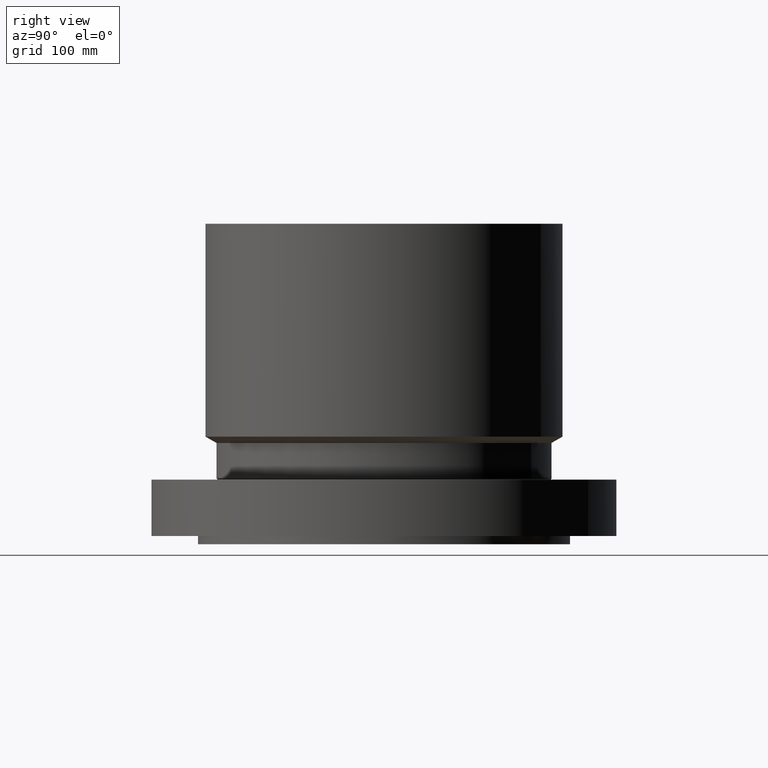
[diagram: clean part render]
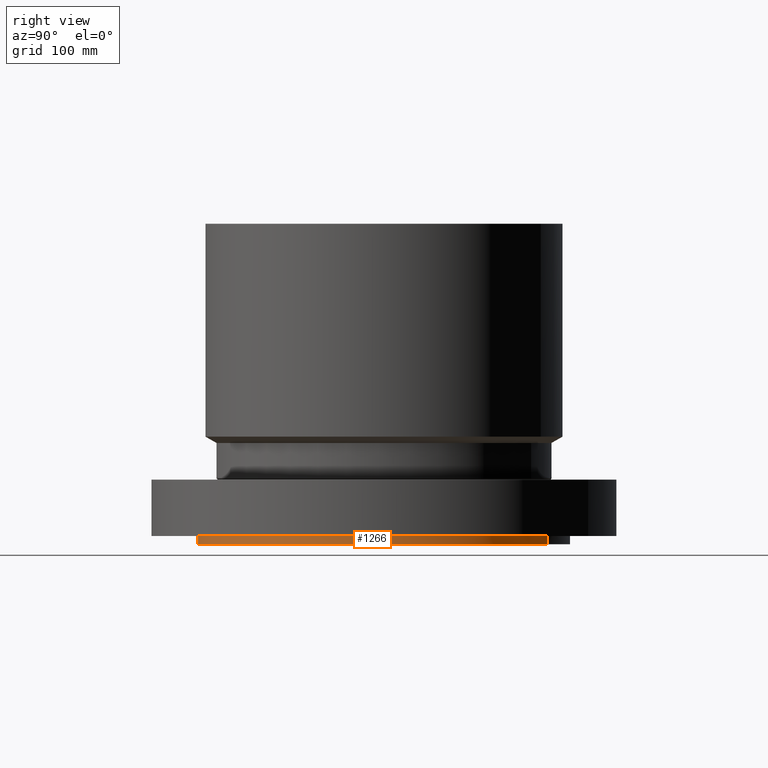
[diagram: same view with one face highlighted and labeled with its STEP entity id]
A machine part, right view. The second image highlights one B-rep face of the part: STEP entity #1266.
In plain terms, the highlighted cylindrical surface (partial cylindrical patch) has radius 177.8 mm, axis along (0, 0, -1).
Its self-contained STEP definition (entity closure, byte-faithful):
#126=AXIS2_PLACEMENT_3D('Circle Axis2P3D',#124,#125,$) ;
#133=AXIS2_PLACEMENT_3D('Circle Axis2P3D',#131,#132,$) ;
#140=AXIS2_PLACEMENT_3D('Circle Axis2P3D',#138,#139,$) ;
#147=AXIS2_PLACEMENT_3D('Circle Axis2P3D',#145,#146,$) ;
#154=AXIS2_PLACEMENT_3D('Circle Axis2P3D',#152,#153,$) ;
#224=AXIS2_PLACEMENT_3D('Circle Axis2P3D',#222,#223,$) ;
#231=AXIS2_PLACEMENT_3D('Circle Axis2P3D',#229,#230,$) ;
#238=AXIS2_PLACEMENT_3D('Circle Axis2P3D',#236,#237,$) ;
#245=AXIS2_PLACEMENT_3D('Circle Axis2P3D',#243,#244,$) ;
#1210=AXIS2_PLACEMENT_3D('Circle Axis2P3D',#1208,#1209,$) ;
#1225=AXIS2_PLACEMENT_3D('Cylinder Axis2P3D',#1222,#1223,#1224) ;
#104=CARTESIAN_POINT('Vertex',(4.94974746833,-4.94974746833,0.)) ;
#124=CARTESIAN_POINT('Axis2P3D Location',(0.,0.,0.)) ;
#128=CARTESIAN_POINT('Vertex',(6.4671567276,-2.67878402657,0.)) ;
#131=CARTESIAN_POINT('Axis2P3D Location',(0.,0.,0.)) ;
#135=CARTESIAN_POINT('Vertex',(7.00000000003,7.93175445674E-015,1.1189649382E-015)) ;
#138=CARTESIAN_POINT('Axis2P3D Location',(0.,0.,0.)) ;
#142=CARTESIAN_POINT('Vertex',(6.4671567276,2.67878402657,0.)) ;
#145=CARTESIAN_POINT('Axis2P3D Location',(0.,0.,0.)) ;
#149=CARTESIAN_POINT('Vertex',(4.94974746833,4.94974746833,0.)) ;
#152=CARTESIAN_POINT('Axis2P3D Location',(0.,0.,0.)) ;
#156=CARTESIAN_POINT('Vertex',(3.35597877024,6.14307793326,1.1189649382E-015)) ;
#219=CARTESIAN_POINT('Vertex',(-3.35597877024,-6.14307793326,1.1189649382E-015)) ;
#222=CARTESIAN_POINT('Axis2P3D Location',(0.,0.,0.)) ;
#226=CARTESIAN_POINT('Vertex',(-2.67878402657,-6.4671567276,0.)) ;
#229=CARTESIAN_POINT('Axis2P3D Location',(0.,0.,0.)) ;
#233=CARTESIAN_POINT('Vertex',(-1.02396964971E-015,-7.00000000003,0.)) ;
#236=CARTESIAN_POINT('Axis2P3D Location',(0.,0.,0.)) ;
#240=CARTESIAN_POINT('Vertex',(2.67878402657,-6.4671567276,0.)) ;
#243=CARTESIAN_POINT('Axis2P3D Location',(0.,0.,0.)) ;
#1203=CARTESIAN_POINT('Vertex',(-3.35597877024,-6.14307793326,-0.313000000001)) ;
#1205=CARTESIAN_POINT('Vertex',(3.35597877024,6.14307793326,-0.313000000001)) ;
#1208=CARTESIAN_POINT('Axis2P3D Location',(0.,0.,-0.313000000001)) ;
#1222=CARTESIAN_POINT('Axis2P3D Location',(0.,0.,5.71850000002)) ;
#1227=CARTESIAN_POINT('Line Origine',(-3.35597877024,-6.14307793326,-0.156500000001)) ;
#1232=CARTESIAN_POINT('Line Origine',(3.35597877024,6.14307793326,-0.156500000001)) ;
#125=DIRECTION('Axis2P3D Direction',(0.,0.,-0.0393700787402)) ;
#132=DIRECTION('Axis2P3D Direction',(0.,0.,-0.0393700787402)) ;
#139=DIRECTION('Axis2P3D Direction',(0.,0.,-0.0393700787402)) ;
#146=DIRECTION('Axis2P3D Direction',(0.,0.,-0.0393700787402)) ;
#153=DIRECTION('Axis2P3D Direction',(0.,0.,-0.0393700787402)) ;
#223=DIRECTION('Axis2P3D Direction',(0.,0.,-0.0393700787402)) ;
#230=DIRECTION('Axis2P3D Direction',(0.,0.,-0.0393700787402)) ;
#237=DIRECTION('Axis2P3D Direction',(0.,0.,-0.0393700787402)) ;
#244=DIRECTION('Axis2P3D Direction',(0.,0.,-0.0393700787402)) ;
#1209=DIRECTION('Axis2P3D Direction',(0.,0.,-0.0393700787402)) ;
#1223=DIRECTION('Axis2P3D Direction',(0.,0.,-0.0393700787402)) ;
#1224=DIRECTION('Axis2P3D XDirection',(0.0188750212049,0.0345504945626,0.)) ;
#1228=DIRECTION('Vector Direction',(0.,0.,-0.0393700787402)) ;
#1233=DIRECTION('Vector Direction',(0.,0.,-0.0393700787402)) ;
#1229=VECTOR('Line Direction',#1228,0.0393700787402) ;
#1234=VECTOR('Line Direction',#1233,0.0393700787402) ;
#1253=ORIENTED_EDGE('',*,*,#1212,.F.) ;
#1254=ORIENTED_EDGE('',*,*,#1236,.T.) ;
#1255=ORIENTED_EDGE('',*,*,#158,.T.) ;
#1256=ORIENTED_EDGE('',*,*,#151,.T.) ;
#1257=ORIENTED_EDGE('',*,*,#144,.T.) ;
#1258=ORIENTED_EDGE('',*,*,#137,.T.) ;
#1259=ORIENTED_EDGE('',*,*,#130,.T.) ;
#1260=ORIENTED_EDGE('',*,*,#247,.T.) ;
#1261=ORIENTED_EDGE('',*,*,#242,.T.) ;
#1262=ORIENTED_EDGE('',*,*,#235,.T.) ;
#1263=ORIENTED_EDGE('',*,*,#228,.T.) ;
#1264=ORIENTED_EDGE('',*,*,#1231,.F.) ;
#1266=ADVANCED_FACE('PartBody',(#1265),#1226,.T.) ;
#127=CIRCLE('generated circle',#126,7.00000000003) ;
#134=CIRCLE('generated circle',#133,7.00000000003) ;
#141=CIRCLE('generated circle',#140,7.00000000003) ;
#148=CIRCLE('generated circle',#147,7.00000000003) ;
#155=CIRCLE('generated circle',#154,7.00000000003) ;
#225=CIRCLE('generated circle',#224,7.00000000003) ;
#232=CIRCLE('generated circle',#231,7.00000000003) ;
#239=CIRCLE('generated circle',#238,7.00000000003) ;
#246=CIRCLE('generated circle',#245,7.00000000003) ;
#1211=CIRCLE('generated circle',#1210,7.00000000003) ;
#1226=CYLINDRICAL_SURFACE('generated cylinder',#1225,7.00000000003) ;
#130=EDGE_CURVE('',#129,#105,#127,.T.) ;
#137=EDGE_CURVE('',#136,#129,#134,.T.) ;
#144=EDGE_CURVE('',#143,#136,#141,.T.) ;
#151=EDGE_CURVE('',#150,#143,#148,.T.) ;
#158=EDGE_CURVE('',#157,#150,#155,.T.) ;
#228=EDGE_CURVE('',#227,#220,#225,.T.) ;
#235=EDGE_CURVE('',#234,#227,#232,.T.) ;
#242=EDGE_CURVE('',#241,#234,#239,.T.) ;
#247=EDGE_CURVE('',#105,#241,#246,.T.) ;
#1212=EDGE_CURVE('',#1206,#1204,#1211,.T.) ;
#1231=EDGE_CURVE('',#1204,#220,#1230,.F.) ;
#1236=EDGE_CURVE('',#1206,#157,#1235,.F.) ;
#1252=EDGE_LOOP('',(#1253,#1254,#1255,#1256,#1257,#1258,#1259,#1260,#1261,#1262,#1263,#1264)) ;
#1265=FACE_OUTER_BOUND('',#1252,.T.) ;
#1230=LINE('Line',#1227,#1229) ;
#1235=LINE('Line',#1232,#1234) ;
#105=VERTEX_POINT('',#104) ;
#129=VERTEX_POINT('',#128) ;
#136=VERTEX_POINT('',#135) ;
#143=VERTEX_POINT('',#142) ;
#150=VERTEX_POINT('',#149) ;
#157=VERTEX_POINT('',#156) ;
#220=VERTEX_POINT('',#219) ;
#227=VERTEX_POINT('',#226) ;
#234=VERTEX_POINT('',#233) ;
#241=VERTEX_POINT('',#240) ;
#1204=VERTEX_POINT('',#1203) ;
#1206=VERTEX_POINT('',#1205) ;